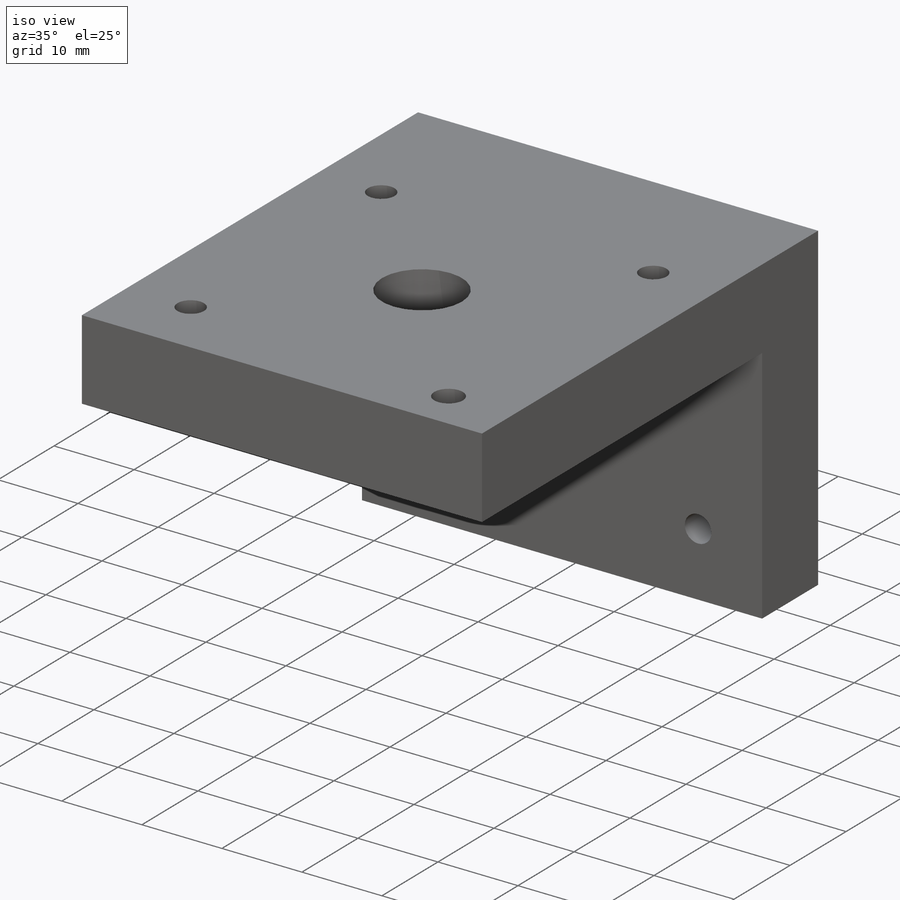
[diagram: iso view]
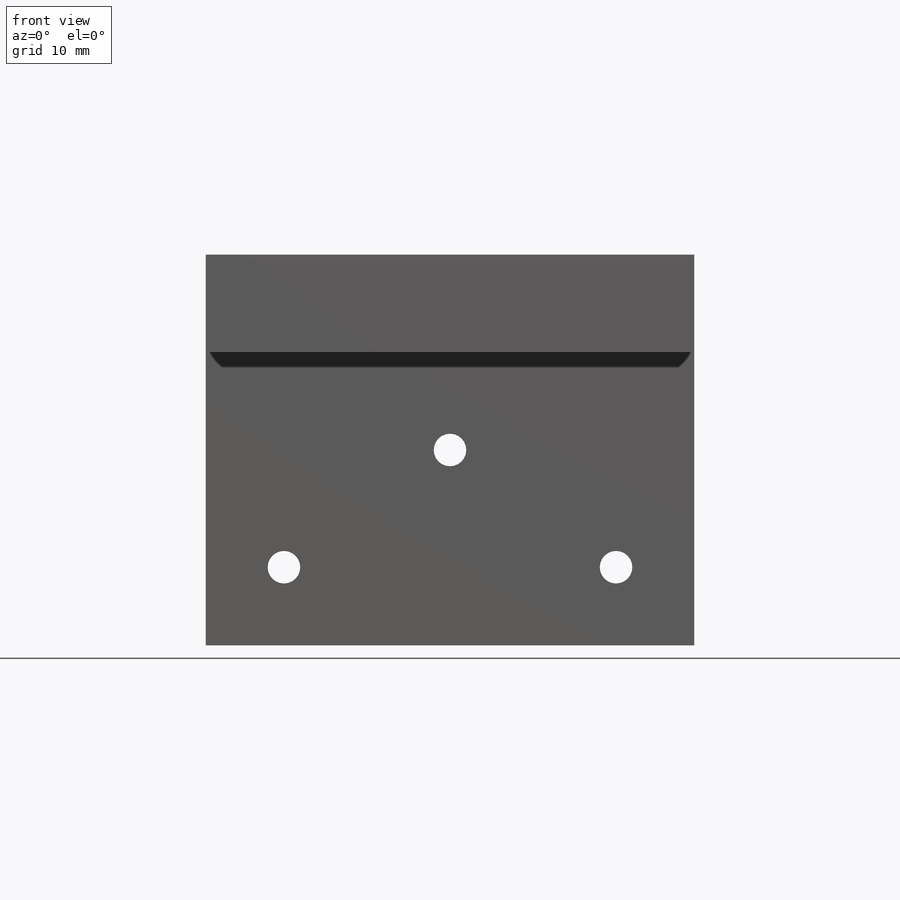
[diagram: front view]
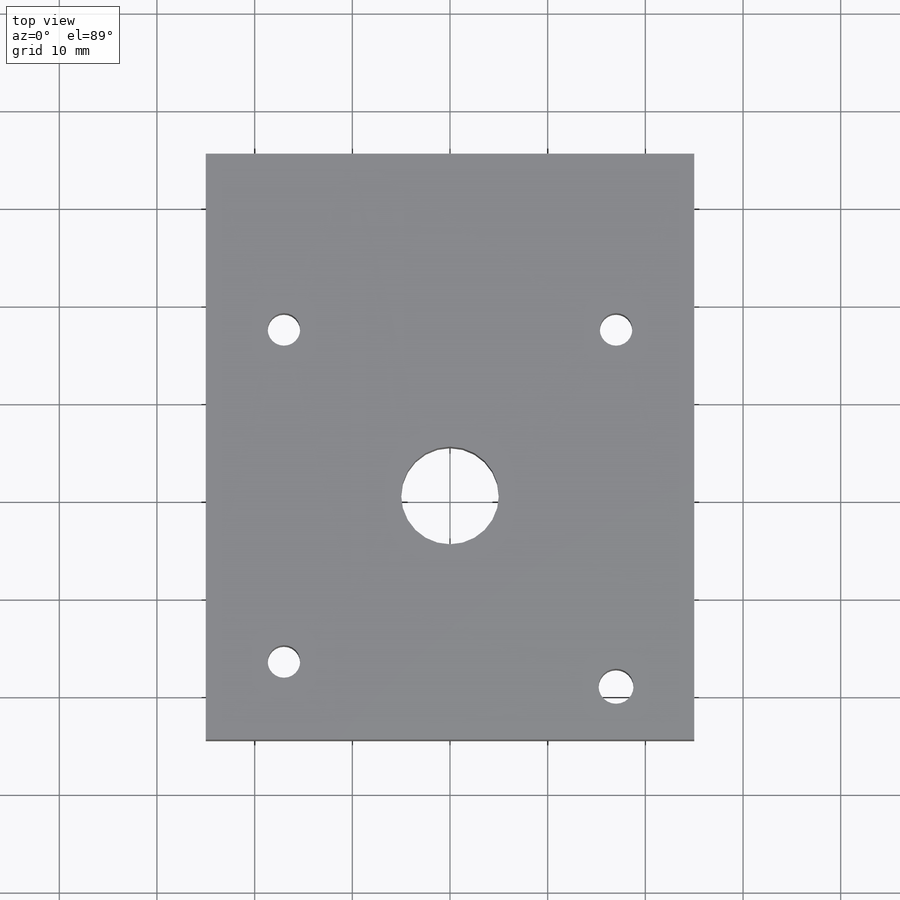
[diagram: top view]
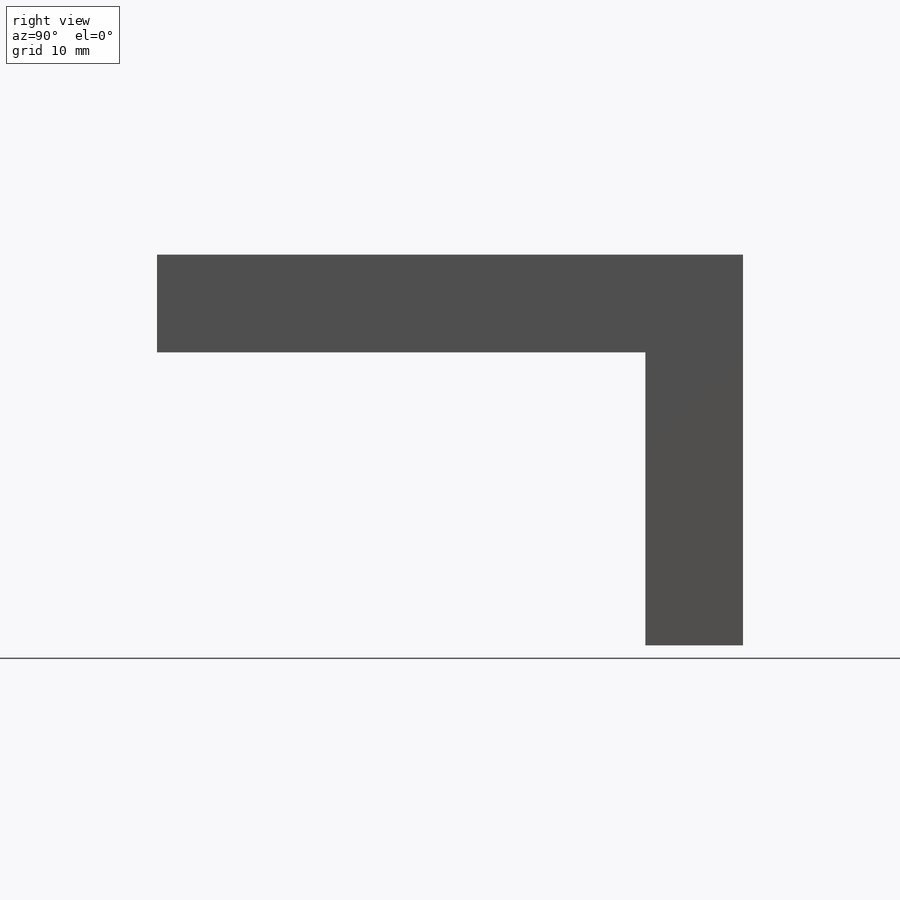
[diagram: right view]
SOLIDWORKS PART (.sldprt)
format: sldprt  version: not decoded by parser v0  size: 175,616 bytes
history: native  units: mm
features: sketch x5, extrude x3, material x1, cut_extrude x1 (+12 scaffold rows collapsed)
feature tree (22):
  scaffold x12  (default folders/planes/origin — collapsed)
  material  "Material <not specified>"
  sketch  "Sketch1"  dims[c1.D1=~6.40948mm c1.D3=~1.17804mm c2.D1=50.0mm c2.D2=50.0mm c2.D3=8.0mm c2.D4=8.0mm c2.D5=8.0mm c2.D6=8.0mm c2.D7=8.0mm c2.D8=8.0mm c2.D9=8.0mm c2.D10=8.0mm]
  extrude  "Boss-Extrude3"  Depth=10mm
  sketch  "Sketch2"
  extrude  "Boss-Extrude4"  Depth=10mm
  sketch  "Sketch3"  dims[D1=10.0mm]
  extrude  "Boss-Extrude5"  Depth=30mm
  sketch  "Sketch4"  dims[D1=8.0mm D2=8.0mm D3=8.0mm D4=8.0mm D5=20.0mm D6=25.0mm]
  cut_extrude  "Cut-Extrude1"  Depth=30mm
  sketch  "Sketch5"
decode coverage: 7 of 9 modeling features carry decoded parameters
note: ~ marks probable driven/reference dimensions
note: suppression state not decoded; provenance and decode notes live in map.json
